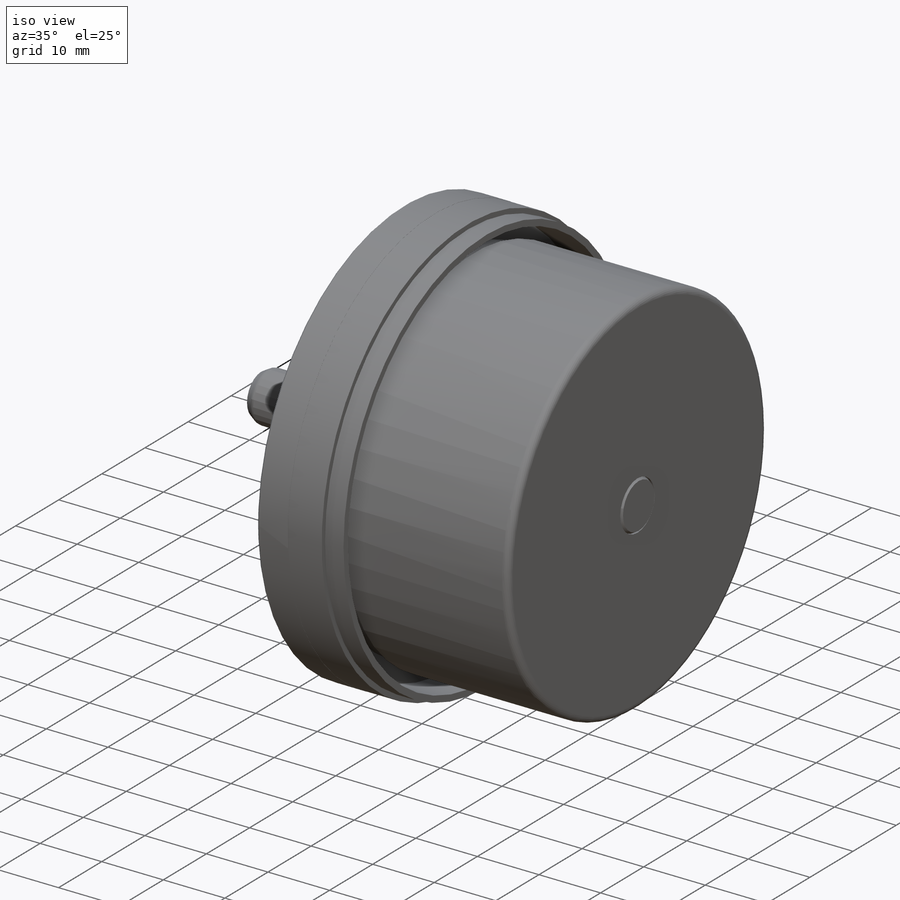
[diagram: iso view]
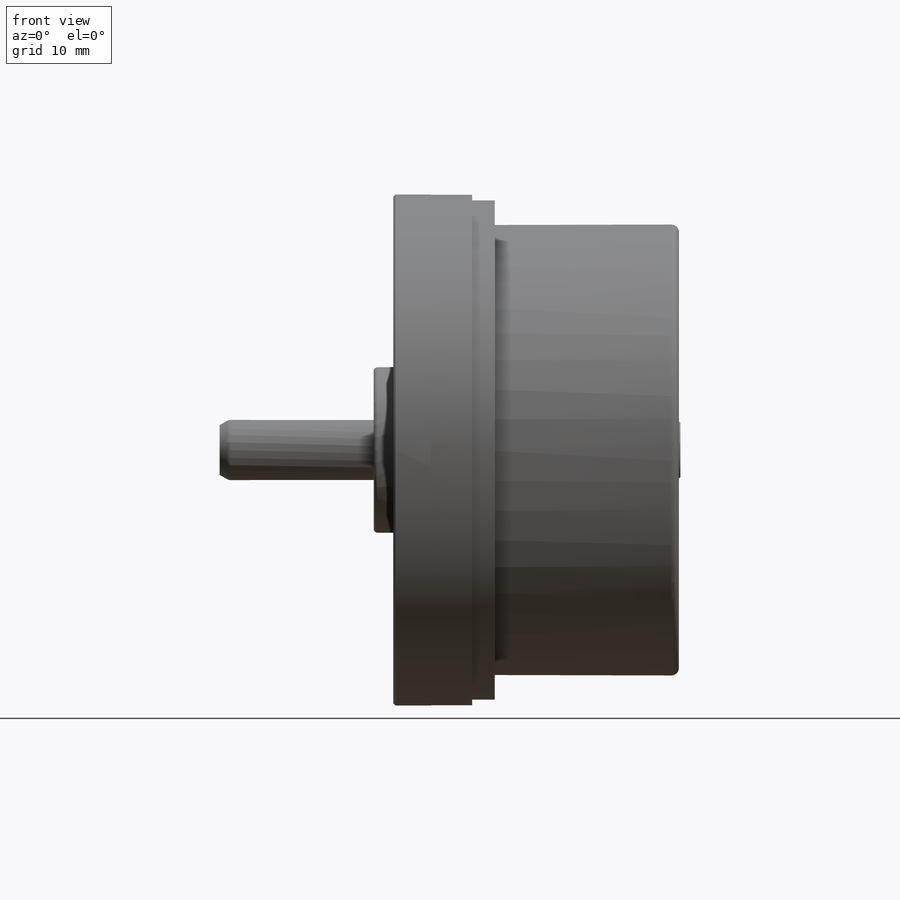
[diagram: front view]
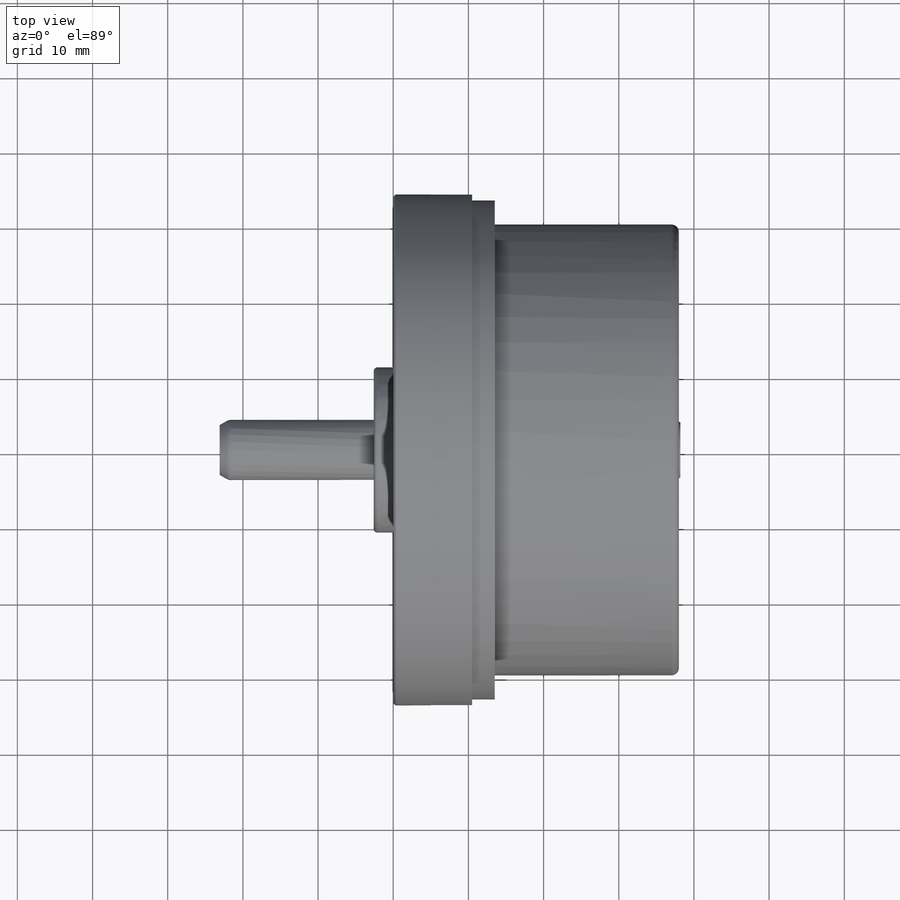
[diagram: top view]
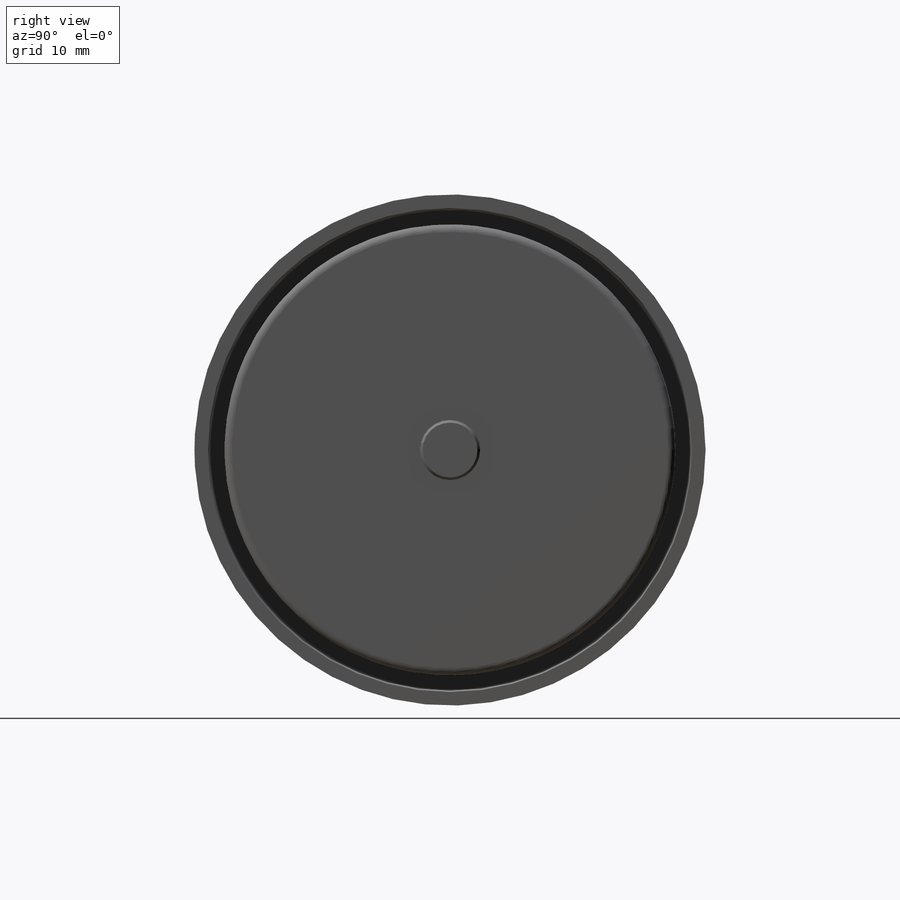
[diagram: right view]
SOLIDWORKS PART (.sldprt)
format: sldprt  version: not decoded by parser v0  size: 438,784 bytes
history: native  units: mm
features: sketch x3, chamfer x2, fillet x2, material x1, revolve x1, hole x1, plane x1 (+12 scaffold rows collapsed)
feature tree (23):
  scaffold x12  (default folders/planes/origin — collapsed)
  material  "Material <not specified>"
  sketch  "Sketch1"
  revolve  "Revolve1"  Angle=360deg
  hole  "Ø3.3 (3.3) Diameter Hole1"  Diameter=3.3mm Depth=7.3mm
  sketch  "Sketch3"
  sketch  "Sketch2"  dims[hole-wizard template sketch: 47 standard entries collapsed; hole parameters kept: c15.Hole Depth=7.3mm c15.D3=~14.816244mm c15.Drill Angle=118.0deg]
  chamfer  "Chamfer1"  Distance=0.55mm Angle=45deg
  chamfer  "Chamfer2"  Distance=0.3mm Angle=45deg
  fillet  "Fillet1"  Radius=0.5mm
  fillet  "Fillet2"  Radius=1mm
  plane  "Plane1"  Offset=0mm
decode coverage: 7 of 9 modeling features carry decoded parameters
note: ~ marks probable driven/reference dimensions
note: suppression state not decoded; provenance and decode notes live in map.json
